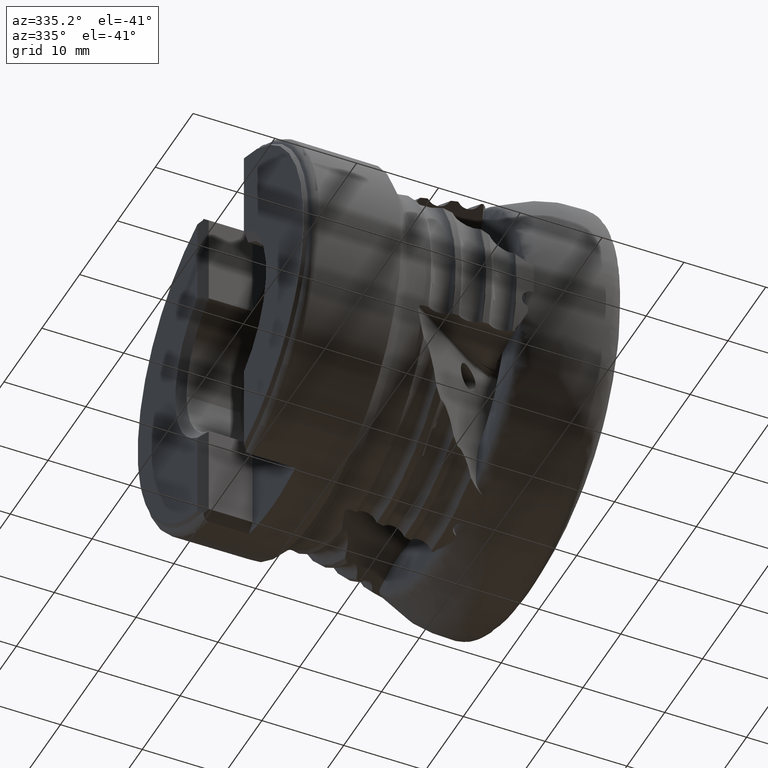
[diagram: clean part render]
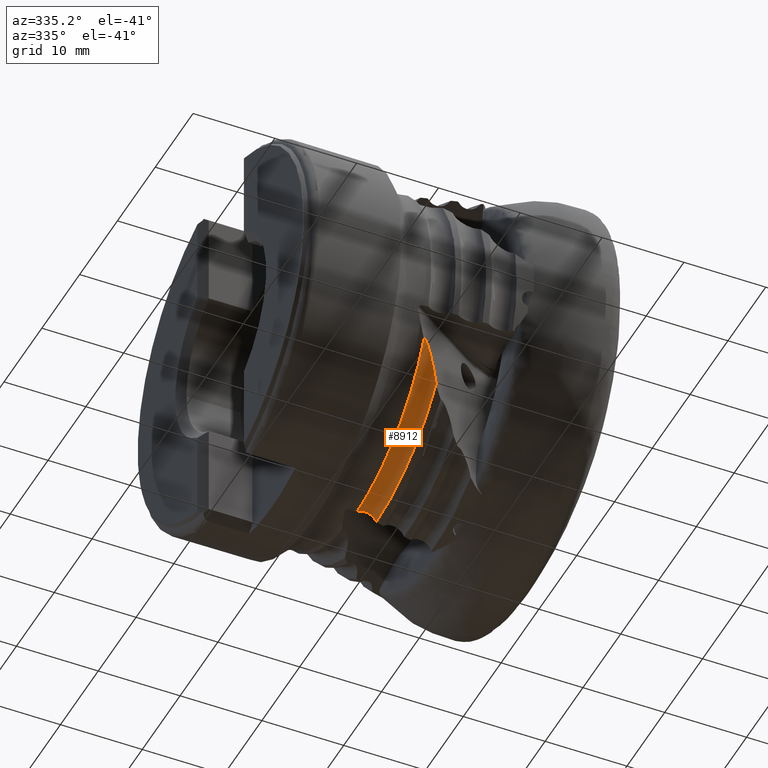
[diagram: same view with one face highlighted and labeled with its STEP entity id]
A machine part, auxiliary view. The second image highlights one B-rep face of the part: STEP entity #8912.
In plain terms, the highlighted toroidal blend (fillet) surface has major radius 21.74 mm and minor (blend) radius 1.5 mm.
Its self-contained STEP definition (entity closure, byte-faithful):
#300 = DIRECTION ( 'NONE',  ( 1.000000000000000000, -0.0000000000000000000, -0.0000000000000000000 ) ) ;
#339 = CARTESIAN_POINT ( 'NONE',  ( -21.41644459990347800, -17.53791754509004600, -10.10226303267324800 ) ) ;
#687 = CARTESIAN_POINT ( 'NONE',  ( -21.11439595851851400, -0.5943135251802733600, -20.27594754697112800 ) ) ;
#782 = B_SPLINE_CURVE_WITH_KNOTS ( 'NONE', 3,
 ( #9061, #6942, #3823, #11157, #4884, #12228, #5935, #13281, #6986, #687, #8031, #1740, #9100, #2795, #10144, #3872 ),
 .UNSPECIFIED., .F., .F.,
 ( 4, 2, 2, 2, 2, 2, 2, 4 ),
 ( 2.835503140668497900E-007, 0.0003657798762480238400, 0.0007312762021819809000, 0.001096772528115937700, 0.001462268854049894900, 0.001827765179983851900, 0.002193261505917808200, 0.002924254157785730900 ),
 .UNSPECIFIED. ) ;
#990 = DIRECTION ( 'NONE',  ( 1.000000000000000000, -0.0000000000000000000, -0.0000000000000000000 ) ) ;
#1014 = CARTESIAN_POINT ( 'NONE',  ( -22.57540911076591800, -18.51577190131428800, -9.247505658177500400 ) ) ;
#1386 = CARTESIAN_POINT ( 'NONE',  ( -21.71394611641981200, -17.79571873282225500, -9.672755558296280800 ) ) ;
#1740 = CARTESIAN_POINT ( 'NONE',  ( -20.77486699893500300, -0.5705713474741046500, -20.41211182320671500 ) ) ;
#2390 = CARTESIAN_POINT ( 'NONE',  ( -20.12610380970721400, -16.37471313735845500, -13.35922127184536600 ) ) ;
#2436 = CARTESIAN_POINT ( 'NONE',  ( -21.91323902138469400, -17.96652334522846000, -9.443622045266741000 ) ) ;
#2795 = CARTESIAN_POINT ( 'NONE',  ( -20.38095027636889300, -0.5430260068938240800, -20.70238291506790800 ) ) ;
#3226 = CARTESIAN_POINT ( 'NONE',  ( -20.12610380970720700, -0.5252054059451046800, -21.12638593329374700 ) ) ;
#3270 = FACE_OUTER_BOUND ( 'NONE', #13060, .T. ) ;
#3477 = CARTESIAN_POINT ( 'NONE',  ( -20.22032503395709200, -16.46648333738242400, -12.90998367034250500 ) ) ;
#3523 = CARTESIAN_POINT ( 'NONE',  ( -22.13958689664833900, -18.15811737484481400, -9.257585884537226300 ) ) ;
#3604 = TOROIDAL_SURFACE ( 'NONE', #11426, 21.74001284684398500, 1.500000000000000900 ) ;
#3823 = CARTESIAN_POINT ( 'NONE',  ( -22.39453123029976900, -0.6838293035923569400, -20.52002908150336000 ) ) ;
#3872 = CARTESIAN_POINT ( 'NONE',  ( -20.12610380970720700, -0.5252054059451046800, -21.12638593329374700 ) ) ;
#4536 = CARTESIAN_POINT ( 'NONE',  ( -20.34960570836792500, -16.58630273344581600, -12.48227858178920100 ) ) ;
#4578 = CARTESIAN_POINT ( 'NONE',  ( -22.35564482469583700, -18.33767508057517800, -9.182930372847744500 ) ) ;
#4865 = VERTEX_POINT ( 'NONE', #3226 ) ;
#4884 = CARTESIAN_POINT ( 'NONE',  ( -22.07435081896485200, -0.6614401081809497800, -20.33917544061040400 ) ) ;
#5072 = DIRECTION ( 'NONE',  ( -1.000000000000000000, 0.0000000000000000000, 0.0000000000000000000 ) ) ;
#5583 = CARTESIAN_POINT ( 'NONE',  ( -20.81733524806949400, -17.00967466244640700, -11.24822794706277100 ) ) ;
#5630 = CARTESIAN_POINT ( 'NONE',  ( -22.49112123471911700, -18.44822654610204900, -9.199176788425262400 ) ) ;
#5935 = CARTESIAN_POINT ( 'NONE',  ( -21.72119828749734100, -0.6367452775256519100, -20.24170597322716200 ) ) ;
#6359 = CARTESIAN_POINT ( 'NONE',  ( -22.57540911076516800, -0.6964775171243974300, -20.68490002556527700 ) ) ;
#6607 = CARTESIAN_POINT ( 'NONE',  ( -22.57540911076508300, 0.0000000000000000000, 0.0000000000000000000 ) ) ;
#6643 = CARTESIAN_POINT ( 'NONE',  ( -21.20321835685920700, -17.35114522367663500, -10.47199230679322400 ) ) ;
#6692 = CARTESIAN_POINT ( 'NONE',  ( -22.57540911076591800, -18.51577190131428800, -9.247505658177500400 ) ) ;
#6942 = CARTESIAN_POINT ( 'NONE',  ( -22.48946869769018200, -0.6904679780209569400, -20.59628959050928600 ) ) ;
#6986 = CARTESIAN_POINT ( 'NONE',  ( -21.35584486701416300, -0.6111972775986116400, -20.23248737713814900 ) ) ;
#7171 = ORIENTED_EDGE ( 'NONE', *, *, #8221, .T. ) ;
#7644 = DIRECTION ( 'NONE',  ( 0.0000000000000000000, 0.0000000000000000000, -1.000000000000000000 ) ) ;
#7690 = CARTESIAN_POINT ( 'NONE',  ( -21.52920407342636400, -17.63615545592409700, -9.923203680294900400 ) ) ;
#7766 = VERTEX_POINT ( 'NONE', #1014 ) ;
#7803 = AXIS2_PLACEMENT_3D ( 'NONE', #6607, #300, #7644 ) ;
#7843 = ORIENTED_EDGE ( 'NONE', *, *, #12297, .T. ) ;
#8031 = CARTESIAN_POINT ( 'NONE',  ( -20.99689676442793400, -0.5860971811315888200, -20.31243303317633300 ) ) ;
#8221 = EDGE_CURVE ( 'NONE', #4865, #13216, #9357, .T. ) ;
#8743 = CARTESIAN_POINT ( 'NONE',  ( -21.77798939015547200, -17.85081731900362800, -9.592622089822768300 ) ) ;
#8912 = ADVANCED_FACE ( 'NONE', ( #3270 ), #3604, .F. ) ;
#9061 = CARTESIAN_POINT ( 'NONE',  ( -22.57540911076516800, -0.6964775171243974300, -20.68490002556527700 ) ) ;
#9100 = CARTESIAN_POINT ( 'NONE',  ( -20.66825771802926000, -0.5631165003367775100, -20.47659114318435100 ) ) ;
#9103 = EDGE_CURVE ( 'NONE', #13216, #7766, #10636, .T. ) ;
#9214 = ORIENTED_EDGE ( 'NONE', *, *, #9103, .T. ) ;
#9357 = CIRCLE ( 'NONE', #9804, 21.13291327103069500 ) ;
#9464 = VERTEX_POINT ( 'NONE', #6359 ) ;
#9791 = CARTESIAN_POINT ( 'NONE',  ( -21.98481263371599700, -18.02745524343739800, -9.374033046808579100 ) ) ;
#9804 = AXIS2_PLACEMENT_3D ( 'NONE', #11359, #5072, #12426 ) ;
#9972 = EDGE_CURVE ( 'NONE', #7766, #9464, #13304, .T. ) ;
#10144 = CARTESIAN_POINT ( 'NONE',  ( -20.22600781269420600, -0.5321913743743809100, -20.90042409982131500 ) ) ;
#10636 = B_SPLINE_CURVE_WITH_KNOTS ( 'NONE', 3,
 ( #2390, #3477, #4536, #11881, #5583, #12940, #6643, #339, #7690, #1386, #8743, #2436, #9791, #3523, #10860, #4578, #11931, #5630, #12979, #6692 ),
 .UNSPECIFIED., .F., .F.,
 ( 4, 2, 2, 2, 2, 2, 2, 2, 2, 4 ),
 ( 9.806226534311286400E-007, 0.001386523215436109500, 0.002772065808218787700, 0.003464837104610127100, 0.004157608401001465700, 0.004503994049197136700, 0.004850379697392806800, 0.005196765345588477900, 0.005369958169686309500, 0.005543150993784140200 ),
 .UNSPECIFIED. ) ;
#10860 = CARTESIAN_POINT ( 'NONE',  ( -22.22336586401857500, -18.22833621104873500, -9.210280805019255700 ) ) ;
#10978 = ORIENTED_EDGE ( 'NONE', *, *, #9972, .T. ) ;
#11106 = CARTESIAN_POINT ( 'NONE',  ( -20.12610380970721400, -16.37471313735845500, -13.35922127184536600 ) ) ;
#11157 = CARTESIAN_POINT ( 'NONE',  ( -22.18729898466978100, -0.6693382133235608000, -20.39133380666256600 ) ) ;
#11359 = CARTESIAN_POINT ( 'NONE',  ( -20.12610380970717500, 0.0000000000000000000, 0.0000000000000000000 ) ) ;
#11426 = AXIS2_PLACEMENT_3D ( 'NONE', #12592, #990, #13627 ) ;
#11881 = CARTESIAN_POINT ( 'NONE',  ( -20.64780799842060000, -16.85765612824522100, -11.65121473859458100 ) ) ;
#11931 = CARTESIAN_POINT ( 'NONE',  ( -22.40183243807539900, -18.37559221747625000, -9.181441674973347800 ) ) ;
#12228 = CARTESIAN_POINT ( 'NONE',  ( -21.84279736860452600, -0.6452483136027358200, -20.26490695442778600 ) ) ;
#12297 = EDGE_CURVE ( 'NONE', #9464, #4865, #782, .T. ) ;
#12426 = DIRECTION ( 'NONE',  ( 0.0000000000000000000, 0.0000000000000000000, 1.000000000000000000 ) ) ;
#12592 = CARTESIAN_POINT ( 'NONE',  ( -21.49775613629996900, 0.0000000000000000000, 0.0000000000000000000 ) ) ;
#12940 = CARTESIAN_POINT ( 'NONE',  ( -21.10298077657497700, -17.26278765001487900, -10.66300489274564700 ) ) ;
#12979 = CARTESIAN_POINT ( 'NONE',  ( -22.53509818257579800, -18.48365431277006000, -9.218631448723881400 ) ) ;
#13060 = EDGE_LOOP ( 'NONE', ( #7171, #9214, #10978, #7843 ) ) ;
#13216 = VERTEX_POINT ( 'NONE', #11106 ) ;
#13281 = CARTESIAN_POINT ( 'NONE',  ( -21.47720744468966800, -0.6196837757447044600, -20.22568847738652000 ) ) ;
#13304 = CIRCLE ( 'NONE', #7803, 20.69662218816137400 ) ;
#13627 = DIRECTION ( 'NONE',  ( 0.0000000000000000000, 0.0000000000000000000, -1.000000000000000000 ) ) ;